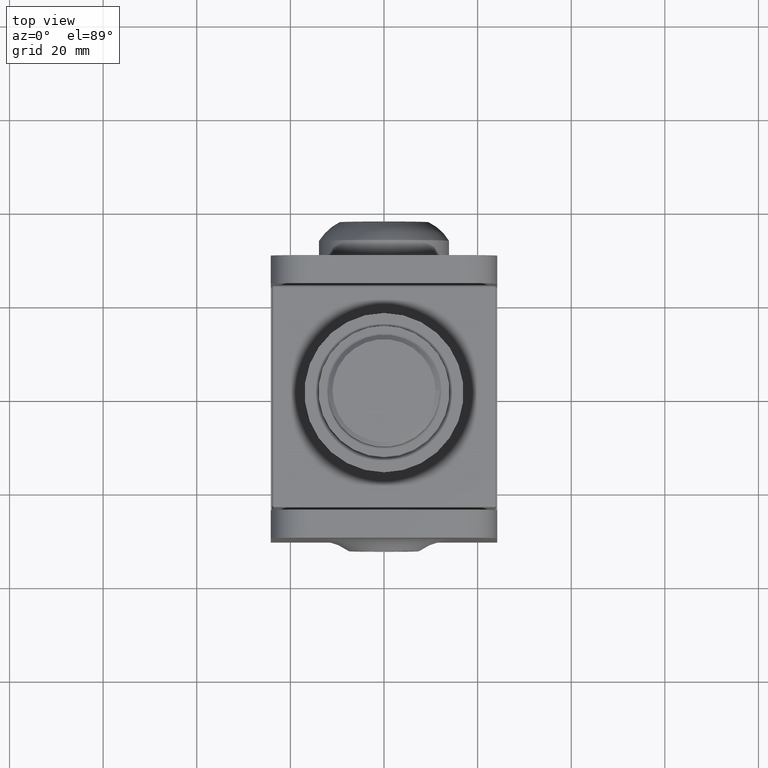
[diagram: clean part render]
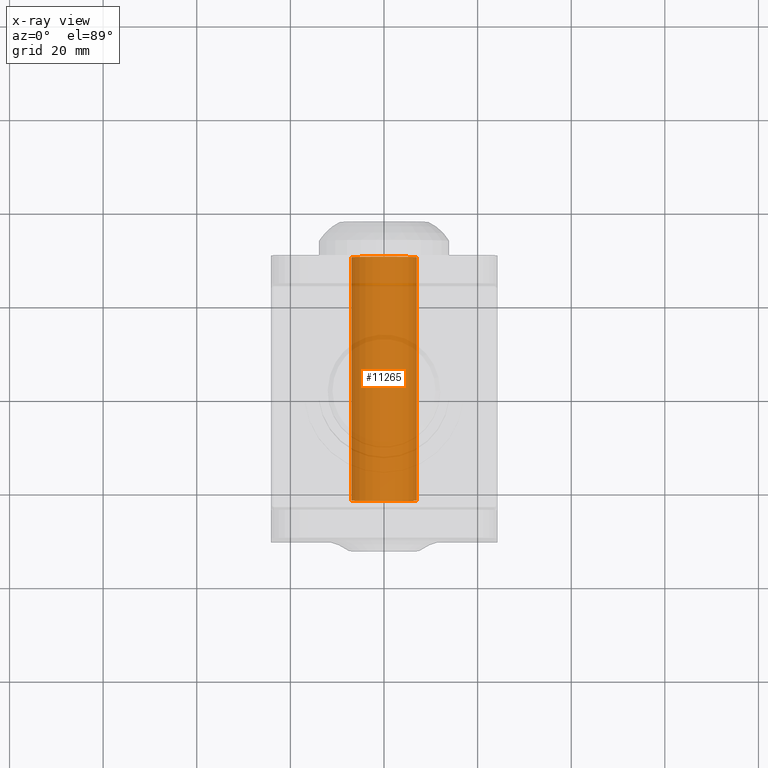
[diagram: x-ray — body ghosted, one internal face saturated and labeled with its STEP entity id]
A machine part, top view, then the same camera in x-ray: the body is ghosted and one INTERNAL B-rep face — a face not visible from any outside direction — is saturated and labeled: STEP entity #11265.
In plain terms, the highlighted cylindrical surface (bore or boss wall) has radius 7 mm, axis along (-0, -1, -0).
Its self-contained STEP definition (entity closure, byte-faithful):
#33 = CARTESIAN_POINT ( 'NONE',  ( 6.505213034913026604E-15, 27.49999999999999645, -6.999999999999987566 ) ) ;
#242 = CARTESIAN_POINT ( 'NONE',  ( 6.288372600415925717E-15, -35.00000000000000000, -2.888894916580853780E-31 ) ) ;
#294 = CIRCLE ( 'NONE', #4125, 7.000000000000003553 ) ;
#965 = EDGE_CURVE ( 'NONE', #7931, #7931, #294, .T. ) ;
#1227 = FACE_OUTER_BOUND ( 'NONE', #11129, .T. ) ;
#1623 = FACE_OUTER_BOUND ( 'NONE', #4242, .T. ) ;
#2304 = DIRECTION ( 'NONE',  ( 0.000000000000000000, 0.000000000000000000, -1.000000000000000000 ) ) ;
#2419 = DIRECTION ( 'NONE',  ( 0.000000000000000000, 0.000000000000000000, -1.000000000000000000 ) ) ;
#4125 = AXIS2_PLACEMENT_3D ( 'NONE', #15521, #9456, #2304 ) ;
#4144 = EDGE_CURVE ( 'NONE', #15294, #15294, #15130, .T. ) ;
#4242 = EDGE_LOOP ( 'NONE', ( #9332 ) ) ;
#7194 = ORIENTED_EDGE ( 'NONE', *, *, #965, .F. ) ;
#7279 = CARTESIAN_POINT ( 'NONE',  ( 6.505213034913026604E-15, -24.50000000000000000, -7.000000000000003553 ) ) ;
#7488 = CYLINDRICAL_SURFACE ( 'NONE', #11524, 6.999999999999995559 ) ;
#7931 = VERTEX_POINT ( 'NONE', #7279 ) ;
#8129 = DIRECTION ( 'NONE',  ( 0.000000000000000000, 0.000000000000000000, -1.000000000000000000 ) ) ;
#9237 = DIRECTION ( 'NONE',  ( 1.637040452729150475E-32, -1.000000000000000000, -6.162975822039154730E-33 ) ) ;
#9332 = ORIENTED_EDGE ( 'NONE', *, *, #4144, .T. ) ;
#9456 = DIRECTION ( 'NONE',  ( 1.637040452729150475E-32, -1.000000000000000000, -6.162975822039154730E-33 ) ) ;
#9622 = DIRECTION ( 'NONE',  ( 1.637040452729150475E-32, -1.000000000000000000, -6.162975822039154730E-33 ) ) ;
#11129 = EDGE_LOOP ( 'NONE', ( #7194 ) ) ;
#11265 = ADVANCED_FACE ( 'NONE', ( #1623, #1227 ), #7488, .T. ) ;
#11524 = AXIS2_PLACEMENT_3D ( 'NONE', #242, #9622, #2419 ) ;
#12953 = CARTESIAN_POINT ( 'NONE',  ( 6.505213034913026604E-15, 27.49999999999999645, 1.925929944387235853E-31 ) ) ;
#14523 = AXIS2_PLACEMENT_3D ( 'NONE', #12953, #9237, #8129 ) ;
#15130 = CIRCLE ( 'NONE', #14523, 6.999999999999987566 ) ;
#15294 = VERTEX_POINT ( 'NONE', #33 ) ;
#15521 = CARTESIAN_POINT ( 'NONE',  ( 6.505213034913026604E-15, -24.50000000000000000, 0.000000000000000000 ) ) ;